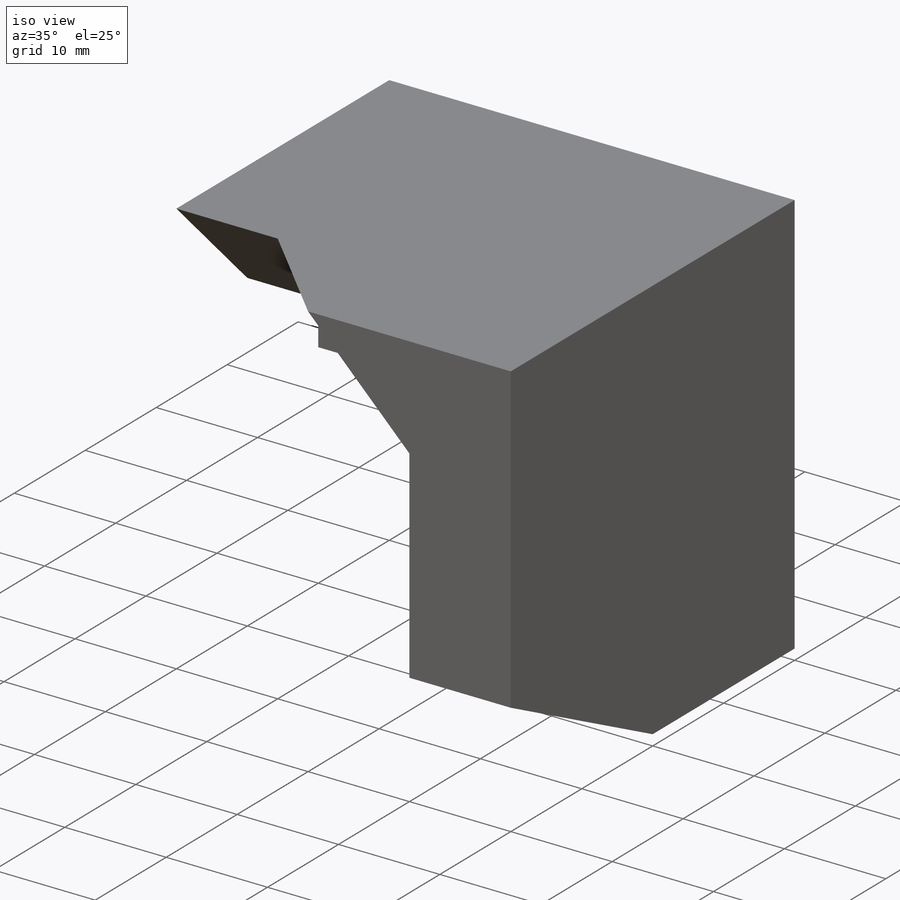
[diagram: iso view]
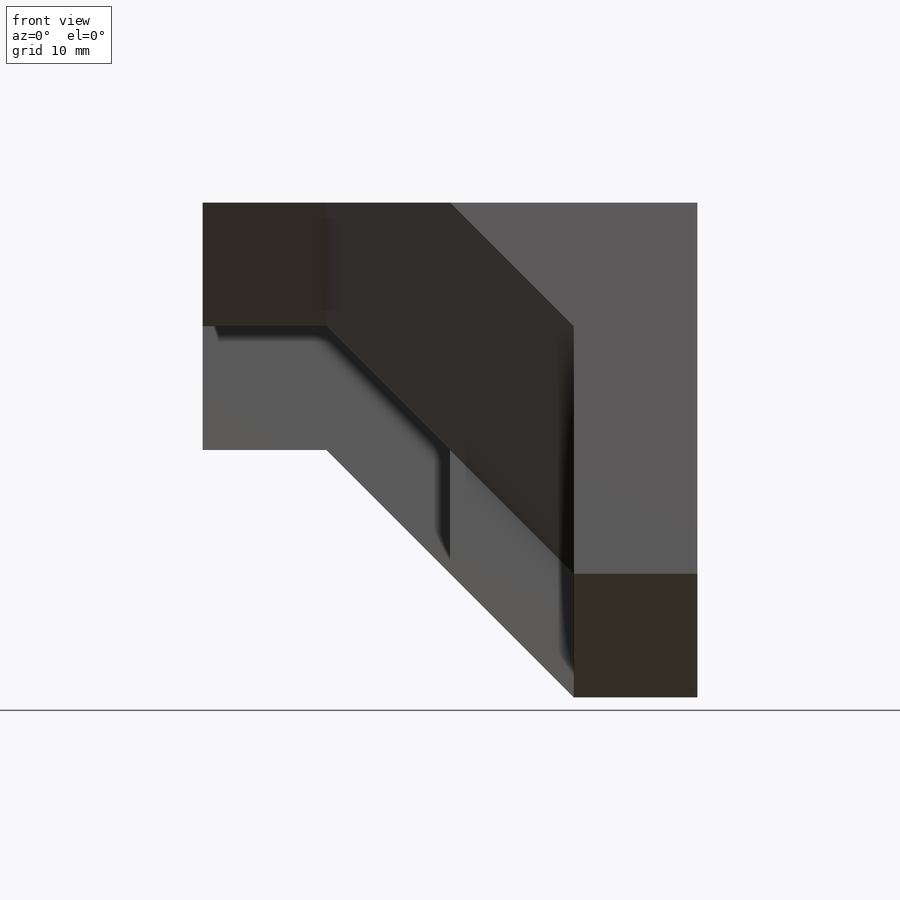
[diagram: front view]
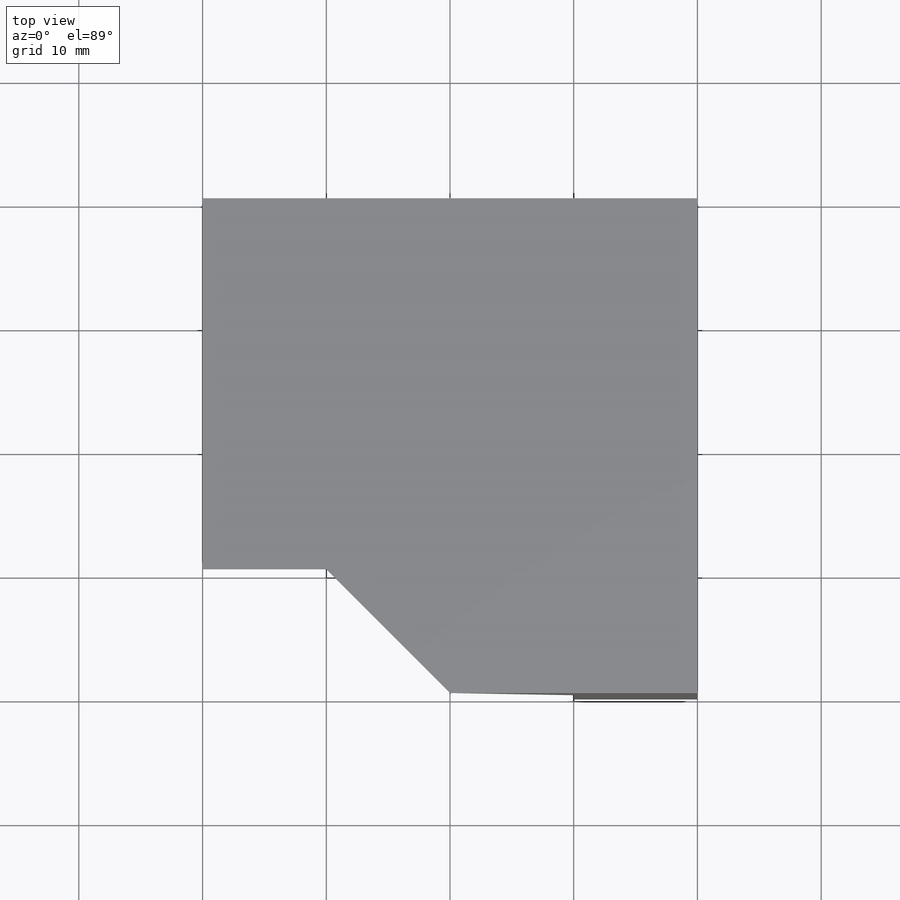
[diagram: top view]
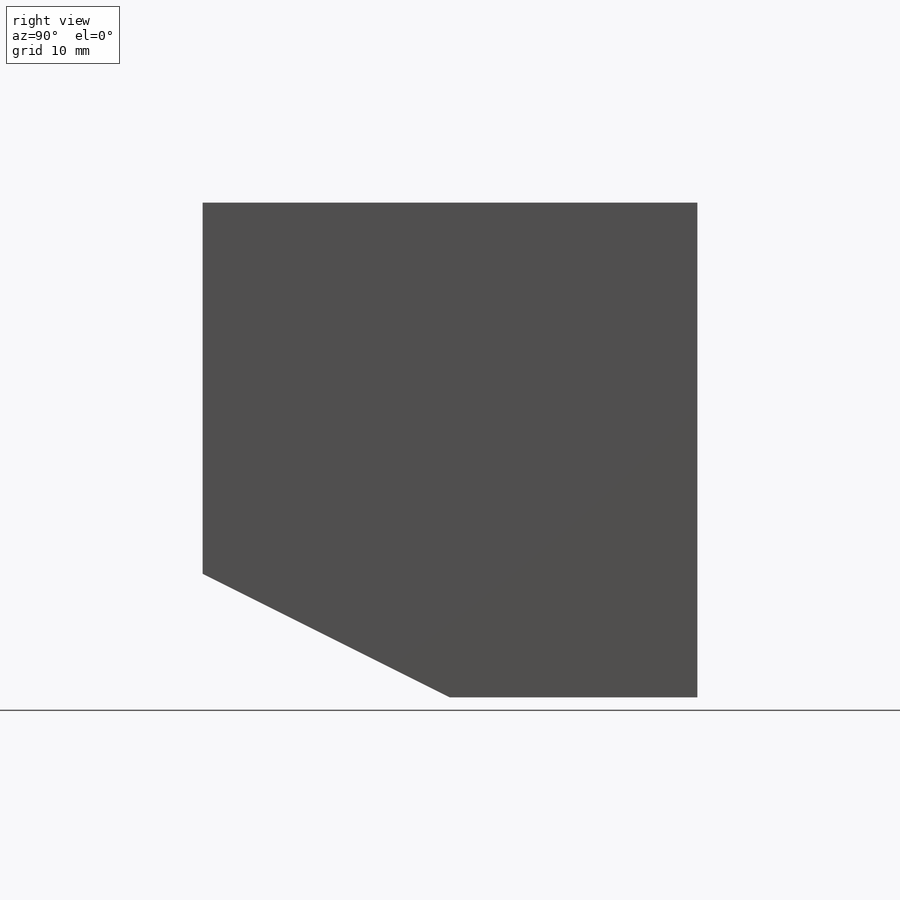
[diagram: right view]
SOLIDWORKS PART (.sldprt)
format: sldprt  version: not decoded by parser v0  size: 435,712 bytes
history: native  units: mm
features: sketch x25, extrude x10, cut_extrude x10, material x1, plane x1 (+13 scaffold rows collapsed)
feature tree (60):
  scaffold x13  (default folders/planes/origin — collapsed)
  material  "Material <not specified>"
  sketch  "Sketch1"  dims[c1.D1=~53.03756mm c1.D2=~68.968995mm c2.D1=40.0mm c2.D2=40.0mm]
  extrude  "Boss-Extrude1"  Depth=20mm
  sketch  "Sketch2"  dims[D1=20.0mm D2=10.0mm D3=10.0mm D4=30.0mm]
  cut_extrude  "Cut-Extrude1"  Depth=20mm
  sketch  "Sketch3"  dims[c1.D1=~11.441385mm c1.D2=~10.927564mm c2.D1=10.0mm c2.D2=10.0mm]
  cut_extrude  "Cut-Extrude2"  Depth=10mm
  sketch  "Sketch5"  dims[D1=20.0mm D2=10.0mm]
  extrude  "Boss-Extrude2"  Depth=10mm
  sketch  "Sketch7"  dims[D1=10.0mm D2=10.0mm]
  extrude  "Boss-Extrude3"  Depth=29mm
  sketch  "Sketch8"  dims[D1=10.0mm]
  extrude  "Boss-Extrude4"  Depth=10mm
  sketch  "Sketch9"  dims[D1=10.0mm D2=10.0mm D3=~14.142136mm]
  cut_extrude  "Cut-Extrude3"  Depth=10mm
  sketch  "Sketch10"  dims[D1=10.0mm D2=~13.059682mm]
  sketch  "Sketch11"  dims[D1=~23.785213mm]
  sketch  "Sketch12"  dims[D1=~14.891727mm]
  sketch  "Sketch13"  dims[D1=~50.591909mm]
  sketch  "Sketch14"  dims[D1=0.0mm]
  plane  "Plane1"
  sketch  "Sketch15"  dims[D1=~28.284271mm]
  extrude  "Boss-Extrude5"  Depth=10mm
  sketch  "Sketch17"  dims[D1=10.0mm D2=10.0mm]
  extrude  "Boss-Extrude8"  Depth=30mm
  sketch  "Sketch18"  dims[D1=10.0mm]
  cut_extrude  "Cut-Extrude4"  Depth=30mm
  sketch  "Sketch19"  dims[D1=10.0mm]
  cut_extrude  "Cut-Extrude5"  Depth=10mm
  sketch  "Sketch20"  dims[D1=~14.142136mm]
  cut_extrude  "Cut-Extrude6"  Depth=10mm
  sketch  "Sketch21"  dims[c1.D1=~9.664802mm c1.D2=~5.491377mm c2.D1=5.0mm c2.D2=10.0mm]
  extrude  "Boss-Extrude9"  Depth=5mm
  sketch  "Sketch22"  dims[D1=5.0mm]
  cut_extrude  "Cut-Extrude7"  Depth=5mm
  sketch  "Sketch23"  dims[D1=~12.247449mm]
  cut_extrude  "Cut-Extrude8"  Depth=5mm
  sketch  "Sketch24"  dims[D1=~1.640847mm]
  cut_extrude  "Cut-Extrude9"  Depth=5mm
  sketch  "Sketch25"  dims[D1=5.0mm]
  extrude  "Boss-Extrude10"  Depth=5mm
  sketch  "Sketch26"  dims[D1=5.0mm]
  extrude  "Boss-Extrude11"  Depth=5mm
  sketch  "Sketch27"  dims[c1.D1=~14.660558mm c1.D2=~21.157458mm c2.D1=20.0mm c2.D2=5.0mm c2.D3=0.0mm]
  extrude  "Boss-Extrude12"  Depth=40mm
  sketch  "3DSketch1"
  cut_extrude  "Cut-Extrude10"  Depth=19mm
decode coverage: 44 of 45 modeling features carry decoded parameters
note: ~ marks probable driven/reference dimensions
note: suppression state not decoded; provenance and decode notes live in map.json
